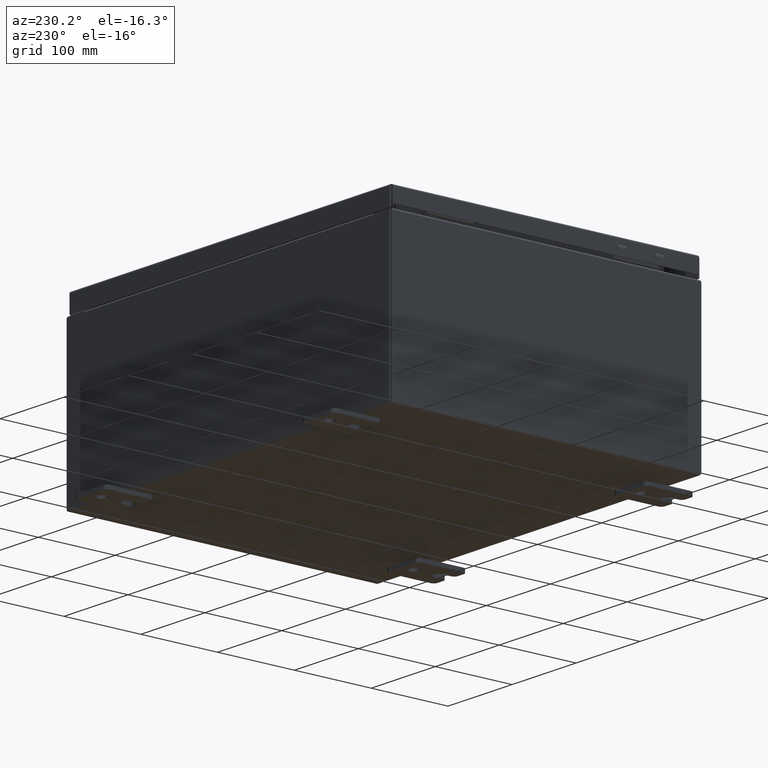
[diagram: clean part render]
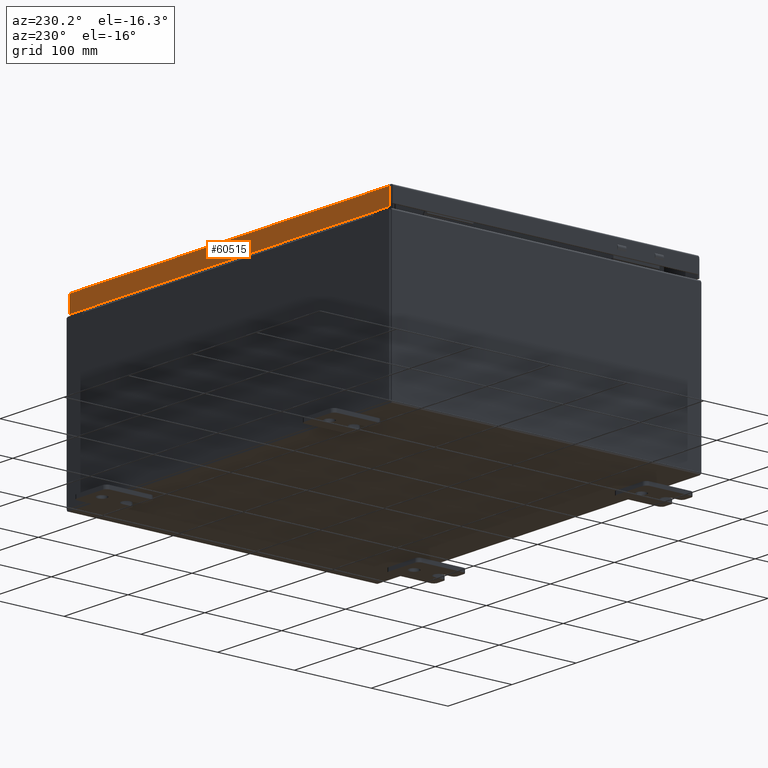
[diagram: same view with one face highlighted and labeled with its STEP entity id]
A machine part, auxiliary view. The second image highlights one B-rep face of the part: STEP entity #60515.
In plain terms, the highlighted planar face has unit normal (0, -1, -0).
Its self-contained STEP definition (entity closure, byte-faithful):
#2624 = CARTESIAN_POINT ( 'NONE',  ( -9.848657864376269400, 7.937500000000000900, -0.08770000000000026400 ) ) ;
#5203 = FACE_OUTER_BOUND ( 'NONE', #22487, .T. ) ;
#5962 = CARTESIAN_POINT ( 'NONE',  ( -9.937499999999998200, 7.937500000000000900, -0.08770000000000026400 ) ) ;
#5967 = VECTOR ( 'NONE', #26163, 39.37007874015748100 ) ;
#6194 = DIRECTION ( 'NONE',  ( 4.699145404622712900E-031, -1.000000000000000000, -3.798629886902788500E-015 ) ) ;
#7398 = VECTOR ( 'NONE', #42392, 39.37007874015748100 ) ;
#7507 = LINE ( 'NONE', #21243, #5967 ) ;
#8175 = CARTESIAN_POINT ( 'NONE',  ( 9.848657864376271200, 7.937500000000000900, 3.059669752903974500E-014 ) ) ;
#8904 = LINE ( 'NONE', #32672, #7398 ) ;
#9629 = VERTEX_POINT ( 'NONE', #57648 ) ;
#14902 = ORIENTED_EDGE ( 'NONE', *, *, #20690, .T. ) ;
#18122 = EDGE_CURVE ( 'NONE', #9629, #26515, #7507, .T. ) ;
#20608 = PLANE ( 'NONE',  #50536 ) ;
#20690 = EDGE_CURVE ( 'NONE', #49465, #26515, #32422, .T. ) ;
#21243 = CARTESIAN_POINT ( 'NONE',  ( -9.937499999999998200, 7.937500000000004400, -0.9377000000000024200 ) ) ;
#21513 = EDGE_CURVE ( 'NONE', #56008, #9629, #8904, .T. ) ;
#22487 = EDGE_LOOP ( 'NONE', ( #43251, #14902, #56721, #53677 ) ) ;
#22839 = VECTOR ( 'NONE', #39907, 39.37007874015748100 ) ;
#26163 = DIRECTION ( 'NONE',  ( 1.000000000000000000, -8.758115402030108600E-047, 1.237063242414006300E-016 ) ) ;
#26367 = EDGE_CURVE ( 'NONE', #49465, #56008, #60077, .T. ) ;
#26515 = VERTEX_POINT ( 'NONE', #31619 ) ;
#27685 = DIRECTION ( 'NONE',  ( 0.0000000000000000000, 3.798629886902788500E-015, -1.000000000000000000 ) ) ;
#31619 = CARTESIAN_POINT ( 'NONE',  ( 9.848657864376273000, 7.937500000000004400, -0.9377000000000002000 ) ) ;
#31745 = VECTOR ( 'NONE', #27685, 39.37007874015748100 ) ;
#32422 = LINE ( 'NONE', #8175, #31745 ) ;
#32672 = CARTESIAN_POINT ( 'NONE',  ( -9.848657864376265900, 7.937500000000000900, -0.07470000000000015500 ) ) ;
#39907 = DIRECTION ( 'NONE',  ( -1.000000000000000000, -6.787654473343917700E-031, 5.498058855173360500E-017 ) ) ;
#40139 = DIRECTION ( 'NONE',  ( 0.0000000000000000000, 3.798629886902788500E-015, -1.000000000000000000 ) ) ;
#42392 = DIRECTION ( 'NONE',  ( -0.0000000000000000000, 3.798629886902788500E-015, -1.000000000000000000 ) ) ;
#43251 = ORIENTED_EDGE ( 'NONE', *, *, #26367, .F. ) ;
#48654 = CARTESIAN_POINT ( 'NONE',  ( 9.848657864376273000, 7.937500000000000900, -0.08770000000000136000 ) ) ;
#49465 = VERTEX_POINT ( 'NONE', #48654 ) ;
#49706 = CARTESIAN_POINT ( 'NONE',  ( 0.0000000000000000000, 7.937500000000000900, 3.059669752903974500E-014 ) ) ;
#50536 = AXIS2_PLACEMENT_3D ( 'NONE', #49706, #6194, #40139 ) ;
#53677 = ORIENTED_EDGE ( 'NONE', *, *, #21513, .F. ) ;
#56008 = VERTEX_POINT ( 'NONE', #2624 ) ;
#56721 = ORIENTED_EDGE ( 'NONE', *, *, #18122, .F. ) ;
#57648 = CARTESIAN_POINT ( 'NONE',  ( -9.848657864376265900, 7.937500000000004400, -0.9377000000000024200 ) ) ;
#60077 = LINE ( 'NONE', #5962, #22839 ) ;
#60515 = ADVANCED_FACE ( 'NONE', ( #5203 ), #20608, .F. ) ;